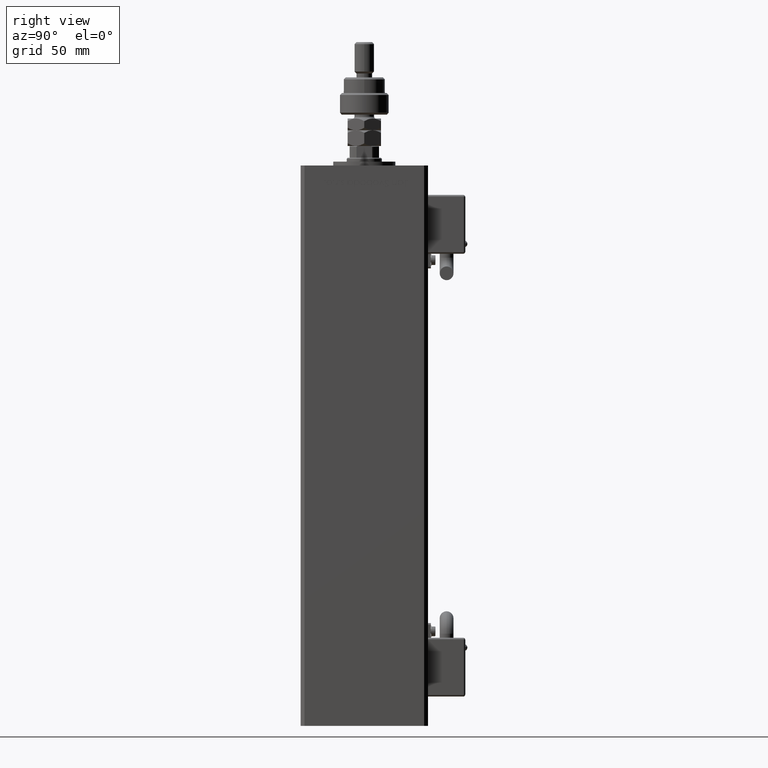
[diagram: clean part render]
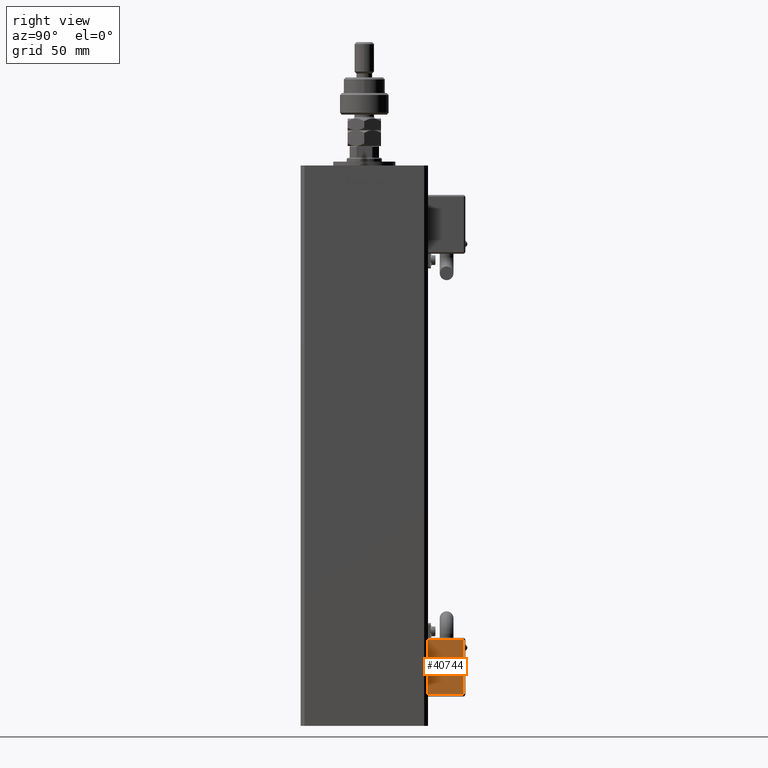
[diagram: same view with one face highlighted and labeled with its STEP entity id]
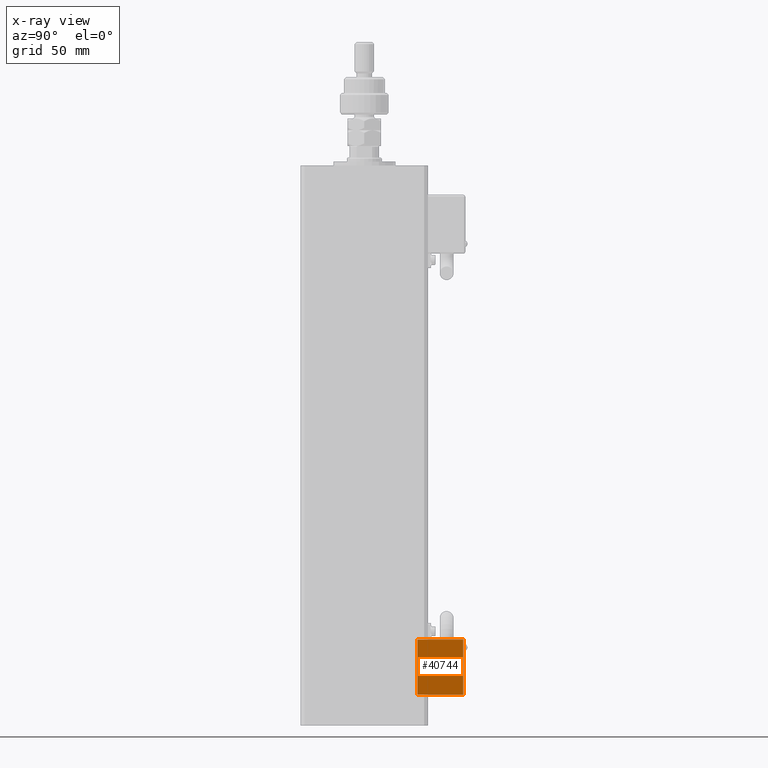
[diagram: x-ray of the same camera — body ghosted, the highlighted face saturated]
A machine part, right view. The second image highlights one B-rep face of the part: STEP entity #40744.
The next image is the same camera in x-ray: the body ghosted, the highlighted face saturated — about 0% of this face is hidden behind the body in this view.
In plain terms, the highlighted planar face has unit normal (-1, 0, 0).
Its self-contained STEP definition (entity closure, byte-faithful):
#55 = CARTESIAN_POINT ( 'NONE',  ( -10.80000000000000071, 27.00000000000000000, -54.00000000000000000 ) ) ;
#2449 = ORIENTED_EDGE ( 'NONE', *, *, #42541, .T. ) ;
#3397 = FACE_OUTER_BOUND ( 'NONE', #31845, .T. ) ;
#5596 = VERTEX_POINT ( 'NONE', #52658 ) ;
#6223 = DIRECTION ( 'NONE',  ( -2.220446049250000002E-16, -1.200000000000000024E-16, 1.000000000000000000 ) ) ;
#7204 = ORIENTED_EDGE ( 'NONE', *, *, #49253, .T. ) ;
#8370 = DIRECTION ( 'NONE',  ( 1.000000000000000000, 4.930380657629929601E-32, 1.094764425253299406E-47 ) ) ;
#8937 = CARTESIAN_POINT ( 'NONE',  ( -10.80000000000000071, 26.00000000000000000, -55.00000000000000000 ) ) ;
#10315 = EDGE_CURVE ( 'NONE', #5596, #22342, #31085, .T. ) ;
#13865 = LINE ( 'NONE', #49058, #44557 ) ;
#16214 = VERTEX_POINT ( 'NONE', #33750 ) ;
#20863 = LINE ( 'NONE', #34658, #37992 ) ;
#21692 = CARTESIAN_POINT ( 'NONE',  ( -10.80000000000000071, 27.00000000000000000, -26.00000000000000000 ) ) ;
#22342 = VERTEX_POINT ( 'NONE', #55 ) ;
#22848 = DIRECTION ( 'NONE',  ( 3.108624468950000014E-32, -1.000000000000000000, -1.400000000000000069E-16 ) ) ;
#27491 = VERTEX_POINT ( 'NONE', #21692 ) ;
#28487 = LINE ( 'NONE', #46391, #56436 ) ;
#29226 = AXIS2_PLACEMENT_3D ( 'NONE', #8937, #8370, #57610 ) ;
#30389 = ORIENTED_EDGE ( 'NONE', *, *, #52932, .T. ) ;
#31085 = LINE ( 'NONE', #31951, #38032 ) ;
#31845 = EDGE_LOOP ( 'NONE', ( #30389, #7204, #49495, #2449 ) ) ;
#31951 = CARTESIAN_POINT ( 'NONE',  ( -10.80000000000000071, 26.00000000000000000, -54.00000000000000000 ) ) ;
#33750 = CARTESIAN_POINT ( 'NONE',  ( -10.80000000000000071, 50.50000000000000000, -26.00000000000000000 ) ) ;
#34658 = CARTESIAN_POINT ( 'NONE',  ( -10.80000000000000071, 26.00000000000000000, -26.00000000000000000 ) ) ;
#35070 = PLANE ( 'NONE',  #29226 ) ;
#37992 = VECTOR ( 'NONE', #43436, 1000.000000000000000 ) ;
#38032 = VECTOR ( 'NONE', #22848, 1000.000000000000000 ) ;
#40744 = ADVANCED_FACE ( 'NONE', ( #3397 ), #35070, .F. ) ;
#42541 = EDGE_CURVE ( 'NONE', #22342, #27491, #28487, .T. ) ;
#43436 = DIRECTION ( 'NONE',  ( -3.108624468950000014E-32, 1.000000000000000000, 1.400000000000000069E-16 ) ) ;
#44557 = VECTOR ( 'NONE', #57838, 1000.000000000000000 ) ;
#46391 = CARTESIAN_POINT ( 'NONE',  ( -10.80000000000000071, 27.00000000000000000, -55.00000000000000000 ) ) ;
#49058 = CARTESIAN_POINT ( 'NONE',  ( -10.80000000000000071, 50.50000000000000000, -55.00000000000000000 ) ) ;
#49253 = EDGE_CURVE ( 'NONE', #16214, #5596, #13865, .T. ) ;
#49495 = ORIENTED_EDGE ( 'NONE', *, *, #10315, .T. ) ;
#52658 = CARTESIAN_POINT ( 'NONE',  ( -10.80000000000000071, 50.50000000000000000, -54.00000000000000000 ) ) ;
#52932 = EDGE_CURVE ( 'NONE', #27491, #16214, #20863, .T. ) ;
#56436 = VECTOR ( 'NONE', #6223, 1000.000000000000000 ) ;
#57610 = DIRECTION ( 'NONE',  ( 0.000000000000000000, -2.220446049250000002E-16, 1.000000000000000000 ) ) ;
#57838 = DIRECTION ( 'NONE',  ( 2.220446049250000002E-16, 1.200000000000000024E-16, -1.000000000000000000 ) ) ;